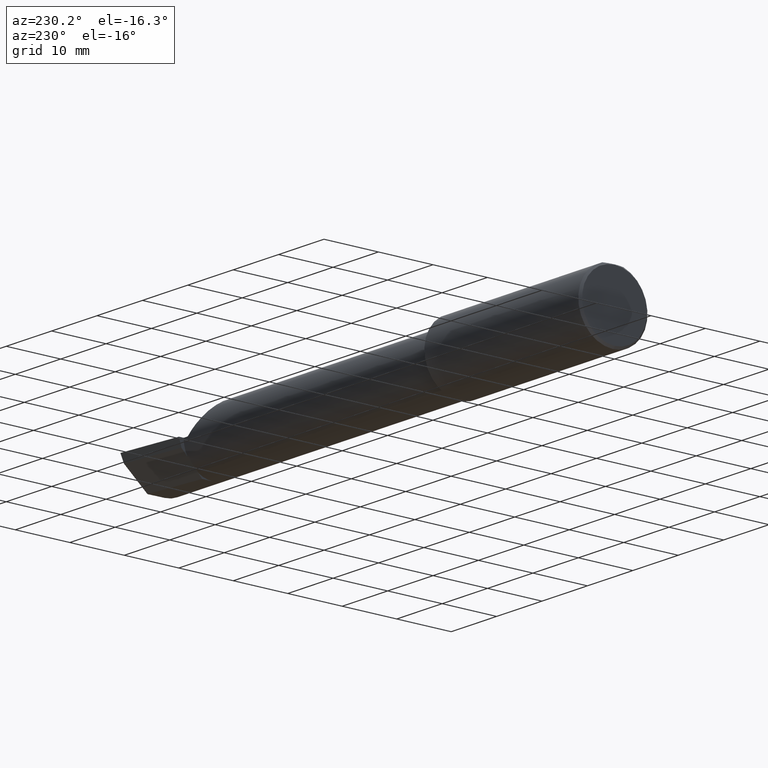
[diagram: clean part render]
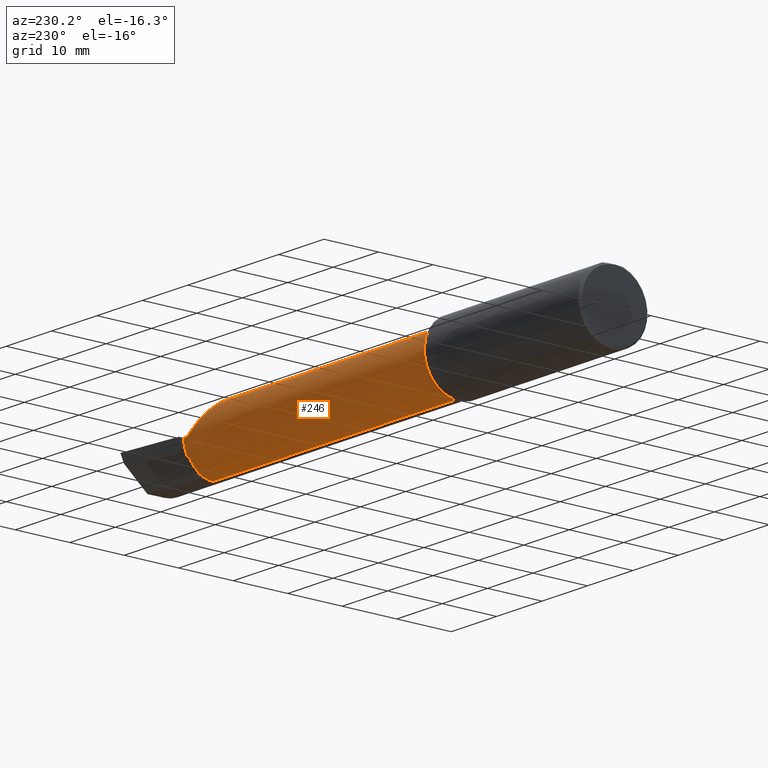
[diagram: same view with one face highlighted and labeled with its STEP entity id]
A machine part, auxiliary view. The second image highlights one B-rep face of the part: STEP entity #246.
In plain terms, the highlighted cylindrical surface (partial cylindrical patch) has radius 5.414 mm, axis along (-1, -0, -0).
Its self-contained STEP definition (entity closure, byte-faithful):
#7 = LINE ( 'NONE', #620, #243 ) ;
#27 = EDGE_CURVE ( 'NONE', #598, #240, #383, .T. ) ;
#31 = VERTEX_POINT ( 'NONE', #267 ) ;
#45 = EDGE_CURVE ( 'NONE', #466, #260, #468, .T. ) ;
#51 = CARTESIAN_POINT ( 'NONE',  ( 3.544999999999999929, 0.05698775240724691937, -0.1825804393148461047 ) ) ;
#71 = AXIS2_PLACEMENT_3D ( 'NONE', #380, #680, #341 ) ;
#83 = CARTESIAN_POINT ( 'NONE',  ( 3.385139620819825446, 0.1601500000000000978, 0.1248603791801745633 ) ) ;
#87 = CARTESIAN_POINT ( 'NONE',  ( 3.532795049205045501, 0.1343794326159072627, -0.1015966078791040172 ) ) ;
#113 = LINE ( 'NONE', #272, #406 ) ;
#121 = DIRECTION ( 'NONE',  ( -1.000000000000000000, -0.0000000000000000000, -0.0000000000000000000 ) ) ;
#170 = CARTESIAN_POINT ( 'NONE',  ( 1.375000000000000000, -0.05299999999999998462, 0.2131499999999996731 ) ) ;
#171 = CARTESIAN_POINT ( 'NONE',  ( 3.544999999999999929, 0.05698775240724691937, -0.1825804393148461047 ) ) ;
#188 = ORIENTED_EDGE ( 'NONE', *, *, #676, .F. ) ;
#189 = VERTEX_POINT ( 'NONE', #539 ) ;
#193 = CARTESIAN_POINT ( 'NONE',  ( 1.375000000000000000, -0.05299999999999998462, 0.0000000000000000000 ) ) ;
#196 = DIRECTION ( 'NONE',  ( -1.000000000000000000, -0.0000000000000000000, -0.0000000000000000000 ) ) ;
#201 = CARTESIAN_POINT ( 'NONE',  ( 3.534569588231495807, 0.1159501401920711994, -0.1355866241796522265 ) ) ;
#207 = EDGE_CURVE ( 'NONE', #598, #260, #629, .T. ) ;
#217 = VERTEX_POINT ( 'NONE', #410 ) ;
#221 = CIRCLE ( 'NONE', #368, 0.2131499999999996731 ) ;
#227 = CARTESIAN_POINT ( 'NONE',  ( 3.532795049205045501, 0.1343794326159072627, -0.1015966078791040172 ) ) ;
#232 = DIRECTION ( 'NONE',  ( 0.0000000000000000000, 0.0000000000000000000, 1.000000000000000000 ) ) ;
#233 = ORIENTED_EDGE ( 'NONE', *, *, #579, .T. ) ;
#238 = CARTESIAN_POINT ( 'NONE',  ( 0.0000000000000000000, -0.05299999999999996381, -0.2131499999999998951 ) ) ;
#240 = VERTEX_POINT ( 'NONE', #513 ) ;
#242 = CARTESIAN_POINT ( 'NONE',  ( 3.543466858877804881, 0.05663251955088018097, -0.1827944341085904756 ) ) ;
#243 = VECTOR ( 'NONE', #737, 39.37007874015748143 ) ;
#246 = ADVANCED_FACE ( 'NONE', ( #505 ), #486, .T. ) ;
#256 = DIRECTION ( 'NONE',  ( -1.000000000000000000, -0.0000000000000000000, -0.0000000000000000000 ) ) ;
#260 = VERTEX_POINT ( 'NONE', #567 ) ;
#267 = CARTESIAN_POINT ( 'NONE',  ( 3.544999999999999929, 0.1328281892403430087, -0.1044069278527783723 ) ) ;
#272 = CARTESIAN_POINT ( 'NONE',  ( 0.0000000000000000000, -0.05299999999999998462, 0.2131499999999998951 ) ) ;
#286 =( BOUNDED_CURVE ( )  B_SPLINE_CURVE ( 3, ( #87, #616, #335, #730 ),
 .UNSPECIFIED., .F., .F. ) 
 B_SPLINE_CURVE_WITH_KNOTS ( ( 4, 4 ),
 ( 2.868174658477174788, 2.883234730632702192 ),
 .UNSPECIFIED. ) 
 CURVE ( )  GEOMETRIC_REPRESENTATION_ITEM ( )  RATIONAL_B_SPLINE_CURVE ( ( 1.000000000000000000, 0.9999810996081960335, 0.9999810996081960335, 1.000000000000000000 ) ) 
 REPRESENTATION_ITEM ( '' )  );
#300 = ORIENTED_EDGE ( 'NONE', *, *, #555, .T. ) ;
#303 = DIRECTION ( 'NONE',  ( 0.0000000000000000000, 0.0000000000000000000, 1.000000000000000000 ) ) ;
#320 = ORIENTED_EDGE ( 'NONE', *, *, #479, .F. ) ;
#329 = VERTEX_POINT ( 'NONE', #170 ) ;
#335 = CARTESIAN_POINT ( 'NONE',  ( 3.541044210672212866, 0.1333523194825135538, -0.1034740570574033958 ) ) ;
#341 = DIRECTION ( 'NONE',  ( 0.0000000000000000000, 0.0000000000000000000, 1.000000000000000000 ) ) ;
#365 = EDGE_CURVE ( 'NONE', #463, #189, #574, .T. ) ;
#368 = AXIS2_PLACEMENT_3D ( 'NONE', #193, #256, #544 ) ;
#378 = AXIS2_PLACEMENT_3D ( 'NONE', #570, #688, #303 ) ;
#380 = CARTESIAN_POINT ( 'NONE',  ( 3.544999999999999929, -0.05299999999999998462, 0.0000000000000000000 ) ) ;
#383 = CIRCLE ( 'NONE', #71, 0.2131500000000001172 ) ;
#397 = AXIS2_PLACEMENT_3D ( 'NONE', #420, #121, #232 ) ;
#398 = CARTESIAN_POINT ( 'NONE',  ( 3.296849999999997394, -0.05299999999999998462, 0.2131499999999998951 ) ) ;
#406 = VECTOR ( 'NONE', #672, 39.37007874015748143 ) ;
#408 = ORIENTED_EDGE ( 'NONE', *, *, #461, .T. ) ;
#410 = CARTESIAN_POINT ( 'NONE',  ( 1.375000000000000000, -0.05299999999999996381, -0.2131499999999996731 ) ) ;
#414 = CARTESIAN_POINT ( 'NONE',  ( 3.296849999999997394, -0.05299999999999998462, 0.2131499999999998951 ) ) ;
#415 = ORIENTED_EDGE ( 'NONE', *, *, #45, .T. ) ;
#420 = CARTESIAN_POINT ( 'NONE',  ( 3.544999999999999929, -0.05299999999999998462, 0.0000000000000000000 ) ) ;
#431 = ORIENTED_EDGE ( 'NONE', *, *, #693, .F. ) ;
#439 = CARTESIAN_POINT ( 'NONE',  ( 3.544999999999999929, 0.1601500000000001256, 4.685946446163642606E-16 ) ) ;
#461 = EDGE_CURVE ( 'NONE', #189, #646, #7, .T. ) ;
#463 = VERTEX_POINT ( 'NONE', #398 ) ;
#466 = VERTEX_POINT ( 'NONE', #227 ) ;
#468 =( BOUNDED_CURVE ( )  B_SPLINE_CURVE ( 3, ( #722, #201, #622, #565 ),
 .UNSPECIFIED., .F., .F. ) 
 B_SPLINE_CURVE_WITH_KNOTS ( ( 4, 4 ),
 ( 0.4968328636548094979, 1.034445644973929657 ),
 .UNSPECIFIED. ) 
 CURVE ( )  GEOMETRIC_REPRESENTATION_ITEM ( )  RATIONAL_B_SPLINE_CURVE ( ( 1.000000000000000000, 0.9760590552538845888, 0.9760590552538845888, 1.000000000000000000 ) ) 
 REPRESENTATION_ITEM ( '' )  );
#476 = VECTOR ( 'NONE', #196, 39.37007874015748143 ) ;
#479 = EDGE_CURVE ( 'NONE', #329, #217, #221, .T. ) ;
#486 = CYLINDRICAL_SURFACE ( 'NONE', #378, 0.2131499999999998951 ) ;
#489 = CIRCLE ( 'NONE', #397, 0.2131500000000001172 ) ;
#492 = CARTESIAN_POINT ( 'NONE',  ( 3.509999999999999787, 0.1601499999999999035, -6.245698675651499853E-17 ) ) ;
#505 = FACE_OUTER_BOUND ( 'NONE', #590, .T. ) ;
#509 = LINE ( 'NONE', #238, #476 ) ;
#513 = CARTESIAN_POINT ( 'NONE',  ( 3.544999999999999929, -0.05299999999999998462, -0.2131499999999999229 ) ) ;
#539 = CARTESIAN_POINT ( 'NONE',  ( 3.509999999999999787, 0.1601499999999999035, -6.245698675651499853E-17 ) ) ;
#544 = DIRECTION ( 'NONE',  ( 0.0000000000000000000, 0.0000000000000000000, 1.000000000000000000 ) ) ;
#555 = EDGE_CURVE ( 'NONE', #240, #217, #509, .T. ) ;
#565 = CARTESIAN_POINT ( 'NONE',  ( 3.540349815208490458, 0.05592018782259786103, -0.1832193089843150713 ) ) ;
#567 = CARTESIAN_POINT ( 'NONE',  ( 3.540349815208490458, 0.05592018782259786103, -0.1832193089843150713 ) ) ;
#570 = CARTESIAN_POINT ( 'NONE',  ( 0.0000000000000000000, -0.05299999999999998462, 0.0000000000000000000 ) ) ;
#574 =( BOUNDED_CURVE ( )  B_SPLINE_CURVE ( 3, ( #414, #701, #83, #492 ),
 .UNSPECIFIED., .F., .T. ) 
 B_SPLINE_CURVE_WITH_KNOTS ( ( 4, 4 ),
 ( 0.0000000000000000000, 1.570796326794898112 ),
 .UNSPECIFIED. ) 
 CURVE ( )  GEOMETRIC_REPRESENTATION_ITEM ( )  RATIONAL_B_SPLINE_CURVE ( ( 1.000000000000000000, 0.8047378541243646044, 0.8047378541243646044, 1.000000000000000000 ) ) 
 REPRESENTATION_ITEM ( '' )  );
#579 = EDGE_CURVE ( 'NONE', #646, #31, #489, .T. ) ;
#583 = CARTESIAN_POINT ( 'NONE',  ( 3.541916792879876930, 0.05627666367902762340, -0.1830073912696824345 ) ) ;
#585 = ORIENTED_EDGE ( 'NONE', *, *, #365, .T. ) ;
#588 = ORIENTED_EDGE ( 'NONE', *, *, #27, .T. ) ;
#590 = EDGE_LOOP ( 'NONE', ( #588, #300, #320, #188, #585, #408, #233, #431, #415, #720 ) ) ;
#598 = VERTEX_POINT ( 'NONE', #171 ) ;
#616 = CARTESIAN_POINT ( 'NONE',  ( 3.536975816846326559, 0.1338694103809224545, -0.1025372660271277325 ) ) ;
#620 = CARTESIAN_POINT ( 'NONE',  ( 7.089685198749692867E-32, 0.1601499999999998480, 4.685946446163635703E-16 ) ) ;
#622 = CARTESIAN_POINT ( 'NONE',  ( 3.537149611766880586, 0.08915557130098378247, -0.1634615431086029469 ) ) ;
#629 =( BOUNDED_CURVE ( )  B_SPLINE_CURVE ( 3, ( #51, #242, #583, #755 ),
 .UNSPECIFIED., .F., .T. ) 
 B_SPLINE_CURVE_WITH_KNOTS ( ( 4, 4 ),
 ( 3.399950576546887593, 3.405787439796293725 ),
 .UNSPECIFIED. ) 
 CURVE ( )  GEOMETRIC_REPRESENTATION_ITEM ( )  RATIONAL_B_SPLINE_CURVE ( ( 1.000000000000000000, 0.9999971609209656886, 0.9999971609209656886, 1.000000000000000000 ) ) 
 REPRESENTATION_ITEM ( '' )  );
#646 = VERTEX_POINT ( 'NONE', #439 ) ;
#672 = DIRECTION ( 'NONE',  ( -1.000000000000000000, -0.0000000000000000000, -0.0000000000000000000 ) ) ;
#676 = EDGE_CURVE ( 'NONE', #463, #329, #113, .T. ) ;
#680 = DIRECTION ( 'NONE',  ( -1.000000000000000000, -0.0000000000000000000, -0.0000000000000000000 ) ) ;
#688 = DIRECTION ( 'NONE',  ( -1.000000000000000000, -0.0000000000000000000, -0.0000000000000000000 ) ) ;
#693 = EDGE_CURVE ( 'NONE', #466, #31, #286, .T. ) ;
#701 = CARTESIAN_POINT ( 'NONE',  ( 3.296849999999997394, 0.07186037918017490478, 0.2131499999999998951 ) ) ;
#720 = ORIENTED_EDGE ( 'NONE', *, *, #207, .F. ) ;
#722 = CARTESIAN_POINT ( 'NONE',  ( 3.532795049205045501, 0.1343794326159072627, -0.1015966078791040172 ) ) ;
#730 = CARTESIAN_POINT ( 'NONE',  ( 3.544999999999999929, 0.1328281892403430087, -0.1044069278527783723 ) ) ;
#737 = DIRECTION ( 'NONE',  ( 1.000000000000000000, 0.0000000000000000000, 0.0000000000000000000 ) ) ;
#755 = CARTESIAN_POINT ( 'NONE',  ( 3.540349815208490458, 0.05592018782259786103, -0.1832193089843150713 ) ) ;